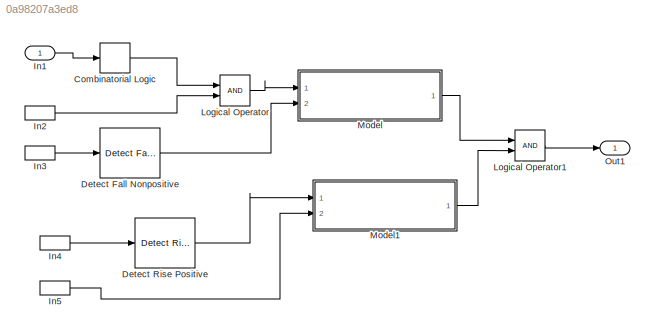
MODEL slx_0a98207a3ed8
KIND model
CONFIG AbsTol = auto
CONFIG EnableMultiTasking = off
CONFIG FixedStep = auto
CONFIG MaxStep = auto
CONFIG MinStep = auto
CONFIG RelTol = 1e-3
CONFIG SampleTimeConstraint = Unconstrained
CONFIG Solver = VariableStepAuto
CONFIG SolverName = VariableStepAuto
CONFIG StartTime = 0.0
CONFIG StopTime = 10.0
BLOCK [CombinatorialLogic] Combinatorial Logic
BLOCK [Reference] Detect Fall Nonpositive  REF=simulink/Logic and Bit
Operations/Detect Fall
Nonpositive
  Ports = [1, 1]
  SourceBlock = simulink/Logic and Bit\nOperations/Detect Fall\nNonpositive
  SourceType = Detect Fall Nonpositive
BLOCK [Reference] Detect Rise Positive  REF=simulink/Logic and Bit
Operations/Detect Rise
Positive
  Ports = [1, 1]
  SourceBlock = simulink/Logic and Bit\nOperations/Detect Rise\nPositive
  SourceType = Detect Rise Positive
BLOCK [Inport] In1
  IconDisplay = Port number
BLOCK [InportShadow] In2
  IconDisplay = Port number
BLOCK [InportShadow] In3
  IconDisplay = Port number
BLOCK [InportShadow] In4
  IconDisplay = Port number
BLOCK [InportShadow] In5
  IconDisplay = Port number
BLOCK [Logic] Logical Operator
  AllPortsSameDT = off
  OutDataTypeStr = boolean
  Ports = [2, 1]
BLOCK [Logic] Logical Operator1
  AllPortsSameDT = off
  OutDataTypeStr = boolean
  Ports = [2, 1]
BLOCK [ModelReference] Model
  ModelNameDialog = Logic221.slx
  ModelReferenceVersion = 1.2
  Ports = [2, 1]
  Variant = off
BLOCK [ModelReference] Model1
  ModelNameDialog = Logic222.slx
  ModelReferenceVersion = 1.2
  Ports = [2, 1]
  Variant = off
BLOCK [Outport] Out1
  IconDisplay = Port number
LINE Combinatorial Logic:1 -> Logical Operator:1
LINE Detect Fall Nonpositive:1 -> Model:2
LINE Detect Rise Positive:1 -> Model1:1
LINE In1:1 -> Combinatorial Logic:1
LINE In2:1 -> Logical Operator:2
LINE In3:1 -> Detect Fall Nonpositive:1
LINE In4:1 -> Detect Rise Positive:1
LINE In5:1 -> Model1:2
LINE Logical Operator1:1 -> Out1:1
LINE Logical Operator:1 -> Model:1
LINE Model1:1 -> Logical Operator1:2
LINE Model:1 -> Logical Operator1:1
